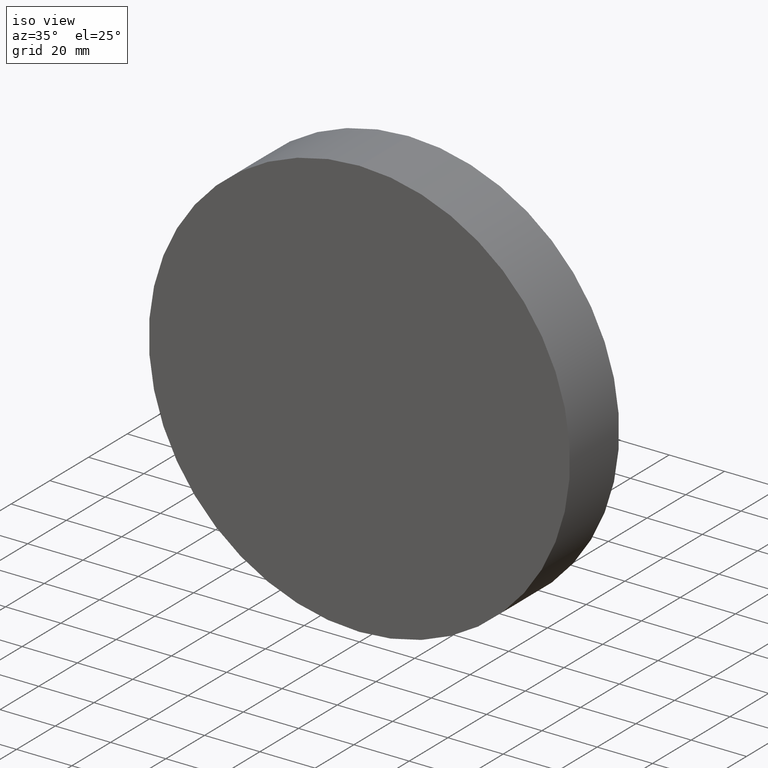
[diagram: clean part render]
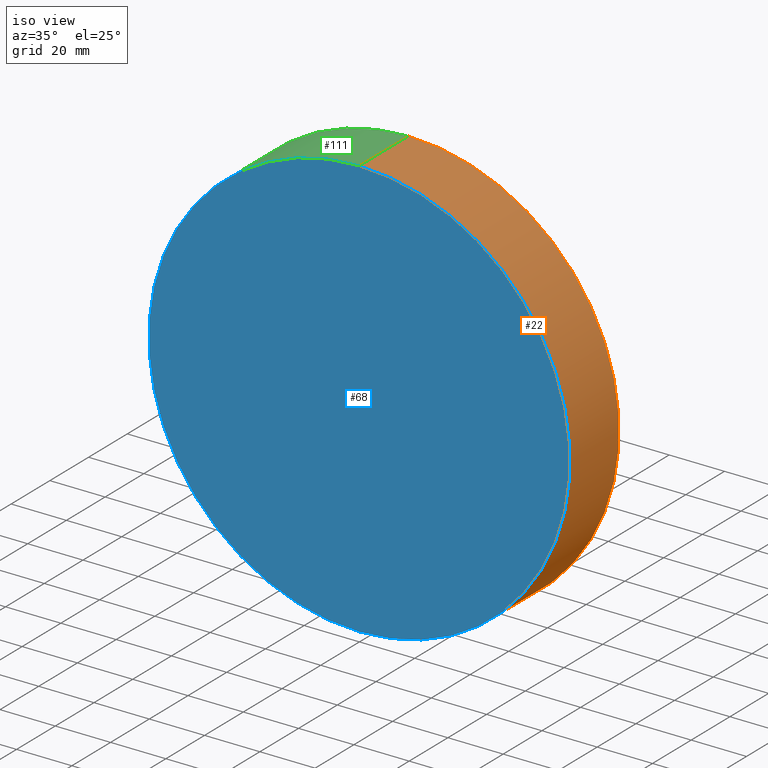
[diagram: same view with three faces highlighted in distinct colors, each labeled with its STEP entity id]
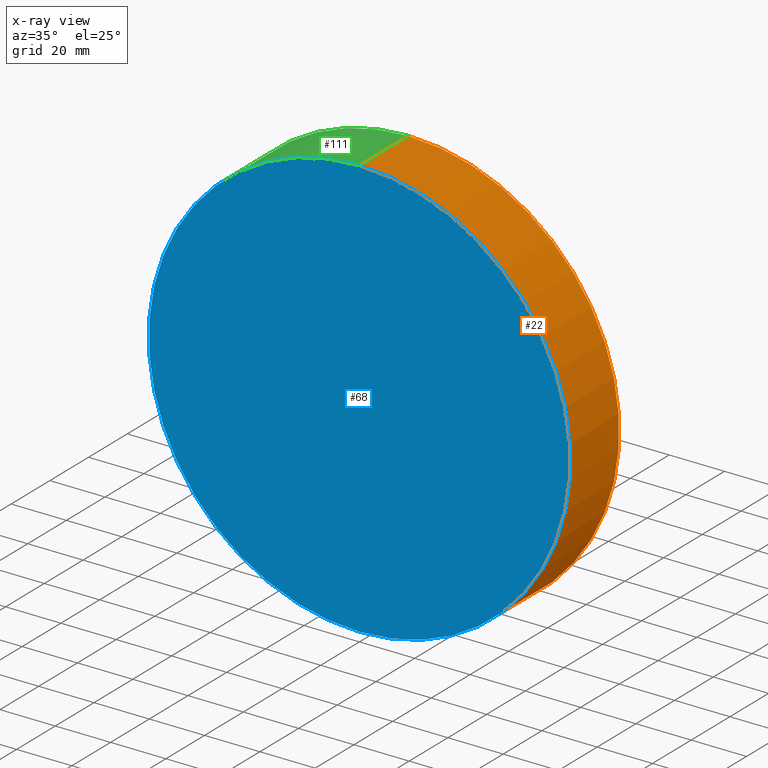
[diagram: x-ray of the same camera — body ghosted, the three highlighted faces saturated]
A machine part, iso view with three faces highlighted in distinct colors.
The next image is the same camera in x-ray (body ghosted, the three faces saturated) — at least one of them is partly hidden behind the body in this view.
Their STEP definitions:

[orange] entity #22 — the highlighted cylindrical surface (partial cylindrical patch) has radius 76.2 mm, axis along (-0, -1, -0).
#2 = CARTESIAN_POINT ( 'NONE',  ( 0.0000000000000000000, 25.39999999999999900, 0.0000000000000000000 ) ) ;
#6 = VECTOR ( 'NONE', #114, 1000.000000000000000 ) ;
#8 = ORIENTED_EDGE ( 'NONE', *, *, #33, .F. ) ;
#17 = DIRECTION ( 'NONE',  ( 0.0000000000000000000, 0.0000000000000000000, 1.000000000000000000 ) ) ;
#22 = ADVANCED_FACE ( 'NONE', ( #106 ), #36, .T. ) ;
#29 = ORIENTED_EDGE ( 'NONE', *, *, #93, .T. ) ;
#33 = EDGE_CURVE ( 'NONE', #78, #66, #120, .T. ) ;
#36 = CYLINDRICAL_SURFACE ( 'NONE', #127, 76.20000000000000300 ) ;
#40 = CARTESIAN_POINT ( 'NONE',  ( 9.331808609502832200E-015, 0.0000000000000000000, 76.20000000000000300 ) ) ;
#48 = DIRECTION ( 'NONE',  ( 0.0000000000000000000, 1.000000000000000000, 0.0000000000000000000 ) ) ;
#50 = CARTESIAN_POINT ( 'NONE',  ( 0.0000000000000000000, 0.0000000000000000000, 0.0000000000000000000 ) ) ;
#63 = CIRCLE ( 'NONE', #139, 76.20000000000000300 ) ;
#64 = DIRECTION ( 'NONE',  ( 0.0000000000000000000, 0.0000000000000000000, 1.000000000000000000 ) ) ;
#66 = VERTEX_POINT ( 'NONE', #134 ) ;
#67 = LINE ( 'NONE', #115, #6 ) ;
#70 = VECTOR ( 'NONE', #113, 1000.000000000000000 ) ;
#72 = CARTESIAN_POINT ( 'NONE',  ( 0.0000000000000000000, 25.39999999999999900, 0.0000000000000000000 ) ) ;
#74 = DIRECTION ( 'NONE',  ( 0.0000000000000000000, 0.0000000000000000000, -1.000000000000000000 ) ) ;
#78 = VERTEX_POINT ( 'NONE', #130 ) ;
#83 = VERTEX_POINT ( 'NONE', #40 ) ;
#84 = DIRECTION ( 'NONE',  ( -0.0000000000000000000, -1.000000000000000000, -0.0000000000000000000 ) ) ;
#86 = ORIENTED_EDGE ( 'NONE', *, *, #123, .T. ) ;
#93 = EDGE_CURVE ( 'NONE', #83, #109, #63, .T. ) ;
#102 = CARTESIAN_POINT ( 'NONE',  ( 0.0000000000000000000, 25.39999999999999900, -76.20000000000000300 ) ) ;
#106 = FACE_OUTER_BOUND ( 'NONE', #112, .T. ) ;
#109 = VERTEX_POINT ( 'NONE', #118 ) ;
#110 = AXIS2_PLACEMENT_3D ( 'NONE', #72, #48, #64 ) ;
#112 = EDGE_LOOP ( 'NONE', ( #8, #86, #29, #137 ) ) ;
#113 = DIRECTION ( 'NONE',  ( -0.0000000000000000000, -1.000000000000000000, -0.0000000000000000000 ) ) ;
#114 = DIRECTION ( 'NONE',  ( -0.0000000000000000000, -1.000000000000000000, -0.0000000000000000000 ) ) ;
#115 = CARTESIAN_POINT ( 'NONE',  ( 9.331808609502832200E-015, 25.39999999999999900, 76.20000000000000300 ) ) ;
#118 = CARTESIAN_POINT ( 'NONE',  ( 0.0000000000000000000, 0.0000000000000000000, -76.20000000000000300 ) ) ;
#120 = CIRCLE ( 'NONE', #110, 76.20000000000000300 ) ;
#123 = EDGE_CURVE ( 'NONE', #78, #83, #67, .T. ) ;
#127 = AXIS2_PLACEMENT_3D ( 'NONE', #2, #84, #74 ) ;
#128 = LINE ( 'NONE', #102, #70 ) ;
#130 = CARTESIAN_POINT ( 'NONE',  ( 9.331808609502832200E-015, 25.39999999999999900, 76.20000000000000300 ) ) ;
#134 = CARTESIAN_POINT ( 'NONE',  ( 0.0000000000000000000, 25.39999999999999900, -76.20000000000000300 ) ) ;
#136 = DIRECTION ( 'NONE',  ( 0.0000000000000000000, 1.000000000000000000, 0.0000000000000000000 ) ) ;
#137 = ORIENTED_EDGE ( 'NONE', *, *, #138, .F. ) ;
#138 = EDGE_CURVE ( 'NONE', #66, #109, #128, .T. ) ;
#139 = AXIS2_PLACEMENT_3D ( 'NONE', #50, #136, #17 ) ;

[blue] entity #68 — the highlighted planar face has unit normal (0, 1, 0).
#3 = AXIS2_PLACEMENT_3D ( 'NONE', #126, #60, #103 ) ;
#4 = FACE_OUTER_BOUND ( 'NONE', #59, .T. ) ;
#9 = EDGE_CURVE ( 'NONE', #109, #83, #135, .T. ) ;
#16 = AXIS2_PLACEMENT_3D ( 'NONE', #35, #97, #31 ) ;
#17 = DIRECTION ( 'NONE',  ( 0.0000000000000000000, 0.0000000000000000000, 1.000000000000000000 ) ) ;
#20 = PLANE ( 'NONE',  #3 ) ;
#24 = ORIENTED_EDGE ( 'NONE', *, *, #9, .F. ) ;
#31 = DIRECTION ( 'NONE',  ( 0.0000000000000000000, 0.0000000000000000000, 1.000000000000000000 ) ) ;
#35 = CARTESIAN_POINT ( 'NONE',  ( 0.0000000000000000000, 0.0000000000000000000, 0.0000000000000000000 ) ) ;
#40 = CARTESIAN_POINT ( 'NONE',  ( 9.331808609502832200E-015, 0.0000000000000000000, 76.20000000000000300 ) ) ;
#50 = CARTESIAN_POINT ( 'NONE',  ( 0.0000000000000000000, 0.0000000000000000000, 0.0000000000000000000 ) ) ;
#59 = EDGE_LOOP ( 'NONE', ( #24, #88 ) ) ;
#60 = DIRECTION ( 'NONE',  ( 0.0000000000000000000, 1.000000000000000000, 0.0000000000000000000 ) ) ;
#63 = CIRCLE ( 'NONE', #139, 76.20000000000000300 ) ;
#68 = ADVANCED_FACE ( 'NONE', ( #4 ), #20, .F. ) ;
#83 = VERTEX_POINT ( 'NONE', #40 ) ;
#88 = ORIENTED_EDGE ( 'NONE', *, *, #93, .F. ) ;
#93 = EDGE_CURVE ( 'NONE', #83, #109, #63, .T. ) ;
#97 = DIRECTION ( 'NONE',  ( 0.0000000000000000000, 1.000000000000000000, 0.0000000000000000000 ) ) ;
#103 = DIRECTION ( 'NONE',  ( 0.0000000000000000000, -0.0000000000000000000, 1.000000000000000000 ) ) ;
#109 = VERTEX_POINT ( 'NONE', #118 ) ;
#118 = CARTESIAN_POINT ( 'NONE',  ( 0.0000000000000000000, 0.0000000000000000000, -76.20000000000000300 ) ) ;
#126 = CARTESIAN_POINT ( 'NONE',  ( 0.0000000000000000000, 0.0000000000000000000, 0.0000000000000000000 ) ) ;
#135 = CIRCLE ( 'NONE', #16, 76.20000000000000300 ) ;
#136 = DIRECTION ( 'NONE',  ( 0.0000000000000000000, 1.000000000000000000, 0.0000000000000000000 ) ) ;
#139 = AXIS2_PLACEMENT_3D ( 'NONE', #50, #136, #17 ) ;

[green] entity #111 — the highlighted cylindrical surface (partial cylindrical patch) has radius 76.2 mm, axis along (-0, -1, -0).
#1 = EDGE_LOOP ( 'NONE', ( #56, #94, #49, #53 ) ) ;
#6 = VECTOR ( 'NONE', #114, 1000.000000000000000 ) ;
#9 = EDGE_CURVE ( 'NONE', #109, #83, #135, .T. ) ;
#16 = AXIS2_PLACEMENT_3D ( 'NONE', #35, #97, #31 ) ;
#18 = DIRECTION ( 'NONE',  ( 0.0000000000000000000, 0.0000000000000000000, 1.000000000000000000 ) ) ;
#19 = DIRECTION ( 'NONE',  ( -0.0000000000000000000, -1.000000000000000000, -0.0000000000000000000 ) ) ;
#23 = EDGE_CURVE ( 'NONE', #66, #78, #91, .T. ) ;
#26 = AXIS2_PLACEMENT_3D ( 'NONE', #65, #19, #85 ) ;
#31 = DIRECTION ( 'NONE',  ( 0.0000000000000000000, 0.0000000000000000000, 1.000000000000000000 ) ) ;
#35 = CARTESIAN_POINT ( 'NONE',  ( 0.0000000000000000000, 0.0000000000000000000, 0.0000000000000000000 ) ) ;
#40 = CARTESIAN_POINT ( 'NONE',  ( 9.331808609502832200E-015, 0.0000000000000000000, 76.20000000000000300 ) ) ;
#41 = CYLINDRICAL_SURFACE ( 'NONE', #26, 76.20000000000000300 ) ;
#49 = ORIENTED_EDGE ( 'NONE', *, *, #138, .T. ) ;
#51 = CARTESIAN_POINT ( 'NONE',  ( 0.0000000000000000000, 25.39999999999999900, 0.0000000000000000000 ) ) ;
#53 = ORIENTED_EDGE ( 'NONE', *, *, #9, .T. ) ;
#56 = ORIENTED_EDGE ( 'NONE', *, *, #123, .F. ) ;
#65 = CARTESIAN_POINT ( 'NONE',  ( 0.0000000000000000000, 25.39999999999999900, 0.0000000000000000000 ) ) ;
#66 = VERTEX_POINT ( 'NONE', #134 ) ;
#67 = LINE ( 'NONE', #115, #6 ) ;
#70 = VECTOR ( 'NONE', #113, 1000.000000000000000 ) ;
#78 = VERTEX_POINT ( 'NONE', #130 ) ;
#83 = VERTEX_POINT ( 'NONE', #40 ) ;
#85 = DIRECTION ( 'NONE',  ( 0.0000000000000000000, 0.0000000000000000000, -1.000000000000000000 ) ) ;
#91 = CIRCLE ( 'NONE', #119, 76.20000000000000300 ) ;
#94 = ORIENTED_EDGE ( 'NONE', *, *, #23, .F. ) ;
#97 = DIRECTION ( 'NONE',  ( 0.0000000000000000000, 1.000000000000000000, 0.0000000000000000000 ) ) ;
#102 = CARTESIAN_POINT ( 'NONE',  ( 0.0000000000000000000, 25.39999999999999900, -76.20000000000000300 ) ) ;
#108 = DIRECTION ( 'NONE',  ( 0.0000000000000000000, 1.000000000000000000, 0.0000000000000000000 ) ) ;
#109 = VERTEX_POINT ( 'NONE', #118 ) ;
#111 = ADVANCED_FACE ( 'NONE', ( #122 ), #41, .T. ) ;
#113 = DIRECTION ( 'NONE',  ( -0.0000000000000000000, -1.000000000000000000, -0.0000000000000000000 ) ) ;
#114 = DIRECTION ( 'NONE',  ( -0.0000000000000000000, -1.000000000000000000, -0.0000000000000000000 ) ) ;
#115 = CARTESIAN_POINT ( 'NONE',  ( 9.331808609502832200E-015, 25.39999999999999900, 76.20000000000000300 ) ) ;
#118 = CARTESIAN_POINT ( 'NONE',  ( 0.0000000000000000000, 0.0000000000000000000, -76.20000000000000300 ) ) ;
#119 = AXIS2_PLACEMENT_3D ( 'NONE', #51, #108, #18 ) ;
#122 = FACE_OUTER_BOUND ( 'NONE', #1, .T. ) ;
#123 = EDGE_CURVE ( 'NONE', #78, #83, #67, .T. ) ;
#128 = LINE ( 'NONE', #102, #70 ) ;
#130 = CARTESIAN_POINT ( 'NONE',  ( 9.331808609502832200E-015, 25.39999999999999900, 76.20000000000000300 ) ) ;
#134 = CARTESIAN_POINT ( 'NONE',  ( 0.0000000000000000000, 25.39999999999999900, -76.20000000000000300 ) ) ;
#135 = CIRCLE ( 'NONE', #16, 76.20000000000000300 ) ;
#138 = EDGE_CURVE ( 'NONE', #66, #109, #128, .T. ) ;